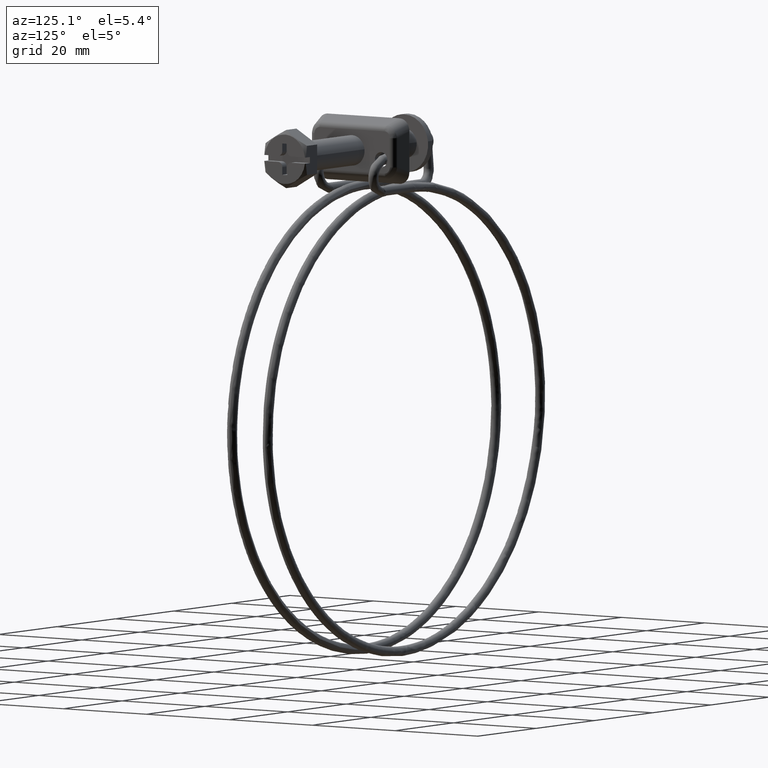
[diagram: clean part render]
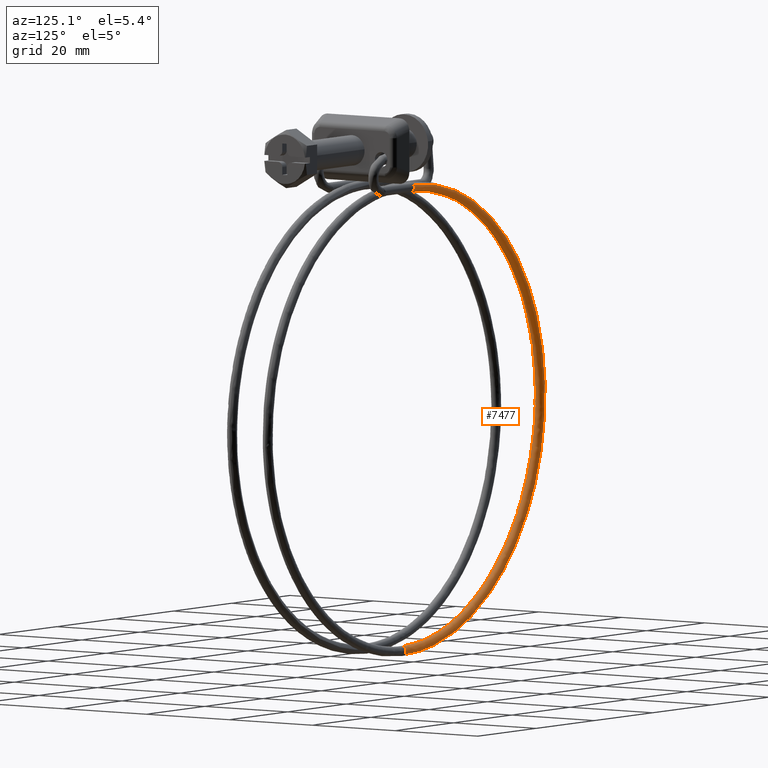
[diagram: same view with one face highlighted and labeled with its STEP entity id]
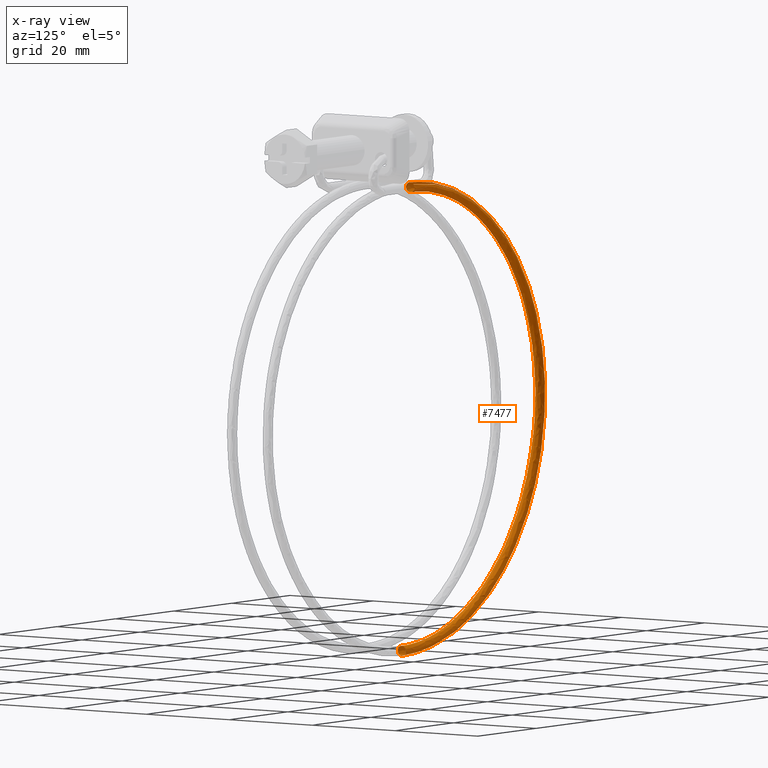
[diagram: x-ray of the same camera — body ghosted, the highlighted face saturated]
A machine part, auxiliary view. The second image highlights one B-rep face of the part: STEP entity #7477.
The next image is the same camera in x-ray: the body ghosted, the highlighted face saturated — about 0% of this face is hidden behind the body in this view.
In plain terms, the highlighted face is a freeform B-spline surface patch.
Its self-contained STEP definition (entity closure, byte-faithful):
#5703=CARTESIAN_POINT('',(-30.049999999999230,5.999755693400784,-6.899852987345003));
#5704=VERTEX_POINT('',#5703);
#5705=CARTESIAN_POINT('',(-30.049999999999240,6.353676709967662,-6.850955199523075));
#5706=VERTEX_POINT('',#5705);
#5707=CARTESIAN_POINT('',(-30.049999999999230,5.999755693400784,-6.899852987345003));
#5708=CARTESIAN_POINT('',(-30.049999999999230,6.113607190196933,-6.862736609330305));
#5709=CARTESIAN_POINT('',(-30.049999999999240,6.233966795544704,-6.845572658446798));
#5710=CARTESIAN_POINT('',(-30.049999999999240,6.353676709967662,-6.850955199523075));
#5711=B_SPLINE_CURVE_WITH_KNOTS('',3,(#5707,#5708,#5709,#5710),.UNSPECIFIED.,.F.,.U.,(4,4),(0.942811831421884,1.0),.UNSPECIFIED.);
#5712=EDGE_CURVE('',#5704,#5706,#5711,.T.);
#5765=CARTESIAN_POINT('',(-30.049999999434281,5.310192172132622,-7.867397762946858));
#5766=VERTEX_POINT('',#5765);
#5772=CARTESIAN_POINT('',(-30.049999999999230,6.266327100939376,-8.849046800476961));
#5773=VERTEX_POINT('',#5772);
#5774=CARTESIAN_POINT('',(-30.049999999999230,6.266327100939376,-8.849046800476961));
#5775=CARTESIAN_POINT('',(-30.049999999920619,6.004772106699168,-8.837612870360513));
#5776=CARTESIAN_POINT('',(-30.049999999812041,5.749532596010638,-8.718579130547013));
#5777=CARTESIAN_POINT('',(-30.049999999604669,5.409562023273995,-8.347540907804744));
#5778=CARTESIAN_POINT('',(-30.049999999506898,5.314962099823448,-8.108624565536566));
#5779=CARTESIAN_POINT('',(-30.049999999434281,5.310192172132622,-7.867397762946858));
#5780=B_SPLINE_CURVE_WITH_KNOTS('',3,(#5774,#5775,#5776,#5777,#5778,#5779),.UNSPECIFIED.,.F.,.U.,(4,2,4),(0.500000000000000,0.625000000000000,0.740274349353484),.UNSPECIFIED.);
#5781=EDGE_CURVE('',#5773,#5766,#5780,.T.);
#5783=CARTESIAN_POINT('',(-30.049999999999240,7.068152112521496,-7.197955006450780));
#5784=VERTEX_POINT('',#5783);
#5785=CARTESIAN_POINT('',(-30.049999999999240,7.068152112521496,-7.197955006450780));
#5786=CARTESIAN_POINT('',(-30.049999999999230,7.231707537160080,-7.388647784320983));
#5787=CARTESIAN_POINT('',(-30.049999999999230,7.320024364138497,-7.642588606575142));
#5788=CARTESIAN_POINT('',(-30.049999999999230,7.297613668846430,-8.155225383462323));
#5789=CARTESIAN_POINT('',(-30.049999999999230,7.178579781296986,-8.410457414939877));
#5790=CARTESIAN_POINT('',(-30.049999999999230,6.792522649198557,-8.764174206404425));
#5791=CARTESIAN_POINT('',(-30.049999999999230,6.527876679887554,-8.860480837561010));
#5792=CARTESIAN_POINT('',(-30.049999999999230,6.266327100939376,-8.849046800476961));
#5793=B_SPLINE_CURVE_WITH_KNOTS('',3,(#5785,#5786,#5787,#5788,#5789,#5790,#5791,#5792),.UNSPECIFIED.,.F.,.U.,(4,2,2,4),(0.130000190141412,0.250000000000000,0.375000000000000,0.500000000000000),.UNSPECIFIED.);
#5794=EDGE_CURVE('',#5784,#5773,#5793,.T.);
#5822=CARTESIAN_POINT('',(-30.049999999434281,5.310192172132622,-7.867397762946858));
#5823=CARTESIAN_POINT('',(-30.049999999442051,5.309788624514021,-7.847039220494791));
#5824=CARTESIAN_POINT('',(-30.049999999450002,5.310024458974900,-7.826664082965641));
#5825=CARTESIAN_POINT('',(-30.049999999562569,5.322325918647586,-7.544672948503854));
#5826=CARTESIAN_POINT('',(-30.049999999694268,5.441333825127187,-7.289333696925996));
#5827=CARTESIAN_POINT('',(-30.049999999882139,5.739042297073577,-7.016377631393280));
#5828=CARTESIAN_POINT('',(-30.049999999944848,5.864823924642217,-6.944088265251131));
#5829=CARTESIAN_POINT('',(-30.049999999999230,5.999755693400784,-6.899852987345003));
#5830=B_SPLINE_CURVE_WITH_KNOTS('',3,(#5822,#5823,#5824,#5825,#5826,#5827,#5828,#5829),.UNSPECIFIED.,.F.,.U.,(4,2,2,4),(0.740274349353484,0.750000000000000,0.875000000000000,0.942811831421884),.UNSPECIFIED.);
#5831=EDGE_CURVE('',#5766,#5704,#5830,.T.);
#6621=CARTESIAN_POINT('',(-30.049999996519482,4.312567047723819,-100.849843094641700));
#6622=VERTEX_POINT('',#6621);
#6638=CARTESIAN_POINT('',(-30.050000000001148,5.028950799201400,-100.534536873659600));
#6639=VERTEX_POINT('',#6638);
#6649=CARTESIAN_POINT('',(-30.050000000001148,4.300002000002150,-98.850001000000105));
#6650=VERTEX_POINT('',#6649);
#6651=CARTESIAN_POINT('',(-30.050000000001148,5.028950799201400,-100.534536873659600));
#6652=CARTESIAN_POINT('',(-30.050000000001148,5.200678629127710,-100.351169305945400));
#6653=CARTESIAN_POINT('',(-30.050000000001148,5.300002000002150,-100.101328014056090));
#6654=CARTESIAN_POINT('',(-30.050000000001148,5.300002000002150,-99.588201612201004));
#6655=CARTESIAN_POINT('',(-30.050000000001148,5.192228903611960,-99.328014341236809));
#6656=CARTESIAN_POINT('',(-30.050000000001148,4.821988658765431,-98.957774096390295));
#6657=CARTESIAN_POINT('',(-30.050000000001148,4.561801387801300,-98.850001000000105));
#6658=CARTESIAN_POINT('',(-30.050000000001148,4.300002000002150,-98.850001000000105));
#6659=B_SPLINE_CURVE_WITH_KNOTS('',3,(#6651,#6652,#6653,#6654,#6655,#6656,#6657,#6658),.UNSPECIFIED.,.F.,.U.,(4,2,2,4),(0.130000190141358,0.250000000000000,0.375000000000000,0.500000000000000),.UNSPECIFIED.);
#6660=EDGE_CURVE('',#6639,#6650,#6659,.T.);
#6662=CARTESIAN_POINT('',(-30.049999999998299,3.300325003172356,-99.875130904040404));
#6663=VERTEX_POINT('',#6662);
#6664=CARTESIAN_POINT('',(-30.050000000001148,4.300002000002150,-98.850001000000105));
#6665=CARTESIAN_POINT('',(-30.050000000000789,4.038201694074086,-98.850001024100820));
#6666=CARTESIAN_POINT('',(-30.050000000000271,3.778013123049111,-98.957774154617354));
#6667=CARTESIAN_POINT('',(-30.049999999999230,3.407770248273019,-99.328014468499020));
#6668=CARTESIAN_POINT('',(-30.049999999998711,3.299995838208778,-99.588201773946906));
#6669=CARTESIAN_POINT('',(-30.049999999998331,3.299994866563078,-99.858380213115041));
#6670=CARTESIAN_POINT('',(-30.049999999998310,3.300105234559130,-99.866757588381915));
#6671=CARTESIAN_POINT('',(-30.049999999998299,3.300325003172356,-99.875130904040404));
#6672=B_SPLINE_CURVE_WITH_KNOTS('',3,(#6664,#6665,#6666,#6667,#6668,#6669,#6670,#6671),.UNSPECIFIED.,.F.,.U.,(4,2,2,4),(0.500000000000000,0.625000000000000,0.750000000000000,0.754000690153427),.UNSPECIFIED.);
#6673=EDGE_CURVE('',#6650,#6663,#6672,.T.);
#6728=CARTESIAN_POINT('',(-30.049999999998299,3.300325003172356,-99.875130904040404));
#6729=CARTESIAN_POINT('',(-30.049999999545939,3.308607526911010,-100.128357982122590));
#6730=CARTESIAN_POINT('',(-30.049999998921528,3.417584146352613,-100.377863780059300));
#6731=CARTESIAN_POINT('',(-30.049999997638000,3.786538112267745,-100.742120829315100));
#6732=CARTESIAN_POINT('',(-30.049999996986440,4.049080067938715,-100.849864315874600));
#6733=CARTESIAN_POINT('',(-30.049999996519482,4.312567047723819,-100.849843094641700));
#6734=B_SPLINE_CURVE_WITH_KNOTS('',3,(#6728,#6729,#6730,#6731,#6732,#6733),.UNSPECIFIED.,.F.,.U.,(4,2,4),(0.754000690153426,0.875000000000000,1.0),.UNSPECIFIED.);
#6735=EDGE_CURVE('',#6663,#6622,#6734,.T.);
#7248=CARTESIAN_POINT('',(-29.316465547794241,7.050297714195269,-7.177164971188298));
#7249=CARTESIAN_POINT('',(-29.319433184892919,7.225136738406863,-7.369872634556280));
#7250=CARTESIAN_POINT('',(-29.327690344527468,7.416194945224826,-7.899608678631754));
#7251=CARTESIAN_POINT('',(-29.339876115313292,7.058921109977724,-8.667417926365463));
#7252=CARTESIAN_POINT('',(-29.344697993747069,6.261581406615353,-8.956906627181873));
#7253=CARTESIAN_POINT('',(-29.339338370993492,5.492526033159320,-8.598968588750582));
#7254=CARTESIAN_POINT('',(-29.326909993414191,5.202993350991814,-7.801586289594034));
#7255=CARTESIAN_POINT('',(-29.314500146671961,5.567446551498171,-7.019671632534410));
#7256=CARTESIAN_POINT('',(-29.311328078591568,6.119524780218951,-6.829833656576368));
#7257=CARTESIAN_POINT('',(-29.311593209653459,6.393571841876428,-6.852696376538033));
#7258=CARTESIAN_POINT('',(-29.560973584191601,7.050285778119648,-7.178099587167547));
#7259=CARTESIAN_POINT('',(-29.562952023061399,7.225124867967862,-7.370803466641084));
#7260=CARTESIAN_POINT('',(-29.568456835486820,7.416183257093367,-7.900528982447290));
#7261=CARTESIAN_POINT('',(-29.576580740728421,7.058909689602110,-8.668322692941924));
#7262=CARTESIAN_POINT('',(-29.579795349321671,6.261570091797188,-8.957805245767105));
#7263=CARTESIAN_POINT('',(-29.576222241953460,5.492514600996826,-8.599874040962639));
#7264=CARTESIAN_POINT('',(-29.567936597693858,5.202981645677680,-7.802507588388012));
#7265=CARTESIAN_POINT('',(-29.559663307413981,5.567434572066240,-7.020608754486463));
#7266=CARTESIAN_POINT('',(-29.557548580249112,6.119512730431663,-6.830774823114196));
#7267=CARTESIAN_POINT('',(-29.557725335553410,6.393559797976902,-6.853637205016548));
#7268=CARTESIAN_POINT('',(-35.918455170925000,7.051613843410568,-7.128633369407684));
#7269=CARTESIAN_POINT('',(-35.894713337875750,7.226448065815561,-7.321537306134513));
#7270=CARTESIAN_POINT('',(-35.828654012232079,7.417492902429011,-7.851819463014222));
#7271=CARTESIAN_POINT('',(-35.731164822701899,7.060199296756248,-8.620434660275452));
#7272=CARTESIAN_POINT('',(-35.692588598936972,6.262851758439648,-8.910242274936181));
#7273=CARTESIAN_POINT('',(-35.735466910674120,5.493805093254927,-8.551949756858670));
#7274=CARTESIAN_POINT('',(-35.834897014740243,5.204292573162218,-7.753745462850865));
#7275=CARTESIAN_POINT('',(-35.934178867507192,5.568765864263672,-6.971010042669628));
#7276=CARTESIAN_POINT('',(-35.959556199131690,6.120849219624720,-6.780962273650480));
#7277=CARTESIAN_POINT('',(-35.957435084858822,6.394895853000552,-6.803842528735677));
#7278=CARTESIAN_POINT('',(-42.271085327250837,7.023773156094059,-8.392439085665039));
#7279=CARTESIAN_POINT('',(-42.221643115818352,7.198719548935027,-8.580229931601240));
#7280=CARTESIAN_POINT('',(-42.084075003821518,7.390076497458533,-9.096285412776354));
#7281=CARTESIAN_POINT('',(-41.881054406720793,7.033243535910962,-9.843905127646369));
#7282=CARTESIAN_POINT('',(-41.800719674147317,6.236078283927376,-10.125404881595530));
#7283=CARTESIAN_POINT('',(-41.890013476636327,5.466829003934442,-9.776346731333559));
#7284=CARTESIAN_POINT('',(-42.097076015559622,5.176846670484034,-8.999555919040708));
#7285=CARTESIAN_POINT('',(-42.303829822271062,5.540850885864520,-8.238202047551420));
#7286=CARTESIAN_POINT('',(-42.356677948665933,6.092814349047698,-8.053619592814737));
#7287=CARTESIAN_POINT('',(-42.352260742111199,6.366871003181313,-8.076043040366248));
#7288=CARTESIAN_POINT('',(-53.563541326354780,6.921581958077990,-13.069847180810450));
#7289=CARTESIAN_POINT('',(-53.468418392246782,7.096941738531668,-13.238716802528300));
#7290=CARTESIAN_POINT('',(-53.203748142409673,7.289448897599909,-13.702125830005141));
#7291=CARTESIAN_POINT('',(-52.813152448518842,6.934313396557336,-14.372050835032249));
#7292=CARTESIAN_POINT('',(-52.658594728315379,6.137819825363231,-14.622806991076500));
#7293=CARTESIAN_POINT('',(-52.830388995864659,5.367823957546239,-14.307921018605960));
#7294=CARTESIAN_POINT('',(-53.228761068578883,5.076110368836051,-13.610371741791720));
#7295=CARTESIAN_POINT('',(-53.626539164561351,5.438385910259768,-12.928141255613911));
#7296=CARTESIAN_POINT('',(-53.728214811840402,5.989907508912931,-12.763783447490230));
#7297=CARTESIAN_POINT('',(-53.719716453146660,6.264001095418554,-12.784516457832099));
#7298=CARTESIAN_POINT('',(-63.923693759561310,6.770322791363254,-19.993152398687169));
#7299=CARTESIAN_POINT('',(-63.786666670885950,6.946294411456360,-20.134017419699219));
#7300=CARTESIAN_POINT('',(-63.405402214232232,7.140503954411740,-20.519506388002331));
#7301=CARTESIAN_POINT('',(-62.842738843158479,6.787880801516976,-21.074438342179018));
#7302=CARTESIAN_POINT('',(-62.620094381851743,5.992381360073133,-21.279692040756832));
#7303=CARTESIAN_POINT('',(-62.867568542995471,5.221280495425347,-21.015383039384840));
#7304=CARTESIAN_POINT('',(-63.441433992277958,4.927004540157085,-20.435116212852481));
#7305=CARTESIAN_POINT('',(-64.014443802642162,5.286721535550307,-19.869993307822192));
#7306=CARTESIAN_POINT('',(-64.160910246892897,5.837589146877902,-19.735569247258429));
#7307=CARTESIAN_POINT('',(-64.148668137655093,6.111737395628921,-19.753800304239711));
#7308=CARTESIAN_POINT('',(-70.846631423405967,6.543976411646201,-30.353285314525980));
#7309=CARTESIAN_POINT('',(-70.681611513592117,6.720863313416813,-30.452256845361742));
#7310=CARTESIAN_POINT('',(-70.222459773296691,6.917619538024190,-30.721181279381192));
#7311=CARTESIAN_POINT('',(-69.544851720367674,6.568754733046987,-31.104089346467710));
#7312=CARTESIAN_POINT('',(-69.276723941648385,5.774742460303716,-31.241273631624111));
#7313=CARTESIAN_POINT('',(-69.574753799386798,5.001988575300036,-31.052625263729499));
#7314=CARTESIAN_POINT('',(-70.265852366776642,4.703879447073569,-30.647807151867539));
#7315=CARTESIAN_POINT('',(-70.955920499454393,5.059768984796546,-30.257871365689049));
#7316=CARTESIAN_POINT('',(-71.132308100344503,5.609658263643065,-30.168226703182629));
#7317=CARTESIAN_POINT('',(-71.117565090130697,5.883888284387663,-30.182714962388580));
#7318=CARTESIAN_POINT('',(-75.523710593638697,6.297277969378966,-41.644955431590311));
#7319=CARTESIAN_POINT('',(-75.339780187158595,6.475162328373380,-41.698272203425887));
#7320=CARTESIAN_POINT('',(-74.828011841466974,6.674693880022105,-41.840166741110913));
#7321=CARTESIAN_POINT('',(-74.072753129137226,6.329924853857803,-42.035606323971507));
#7322=CARTESIAN_POINT('',(-73.773899182296617,5.537533270325832,-42.098609808051542));
#7323=CARTESIAN_POINT('',(-74.106081844114115,4.762977954005295,-41.992415013989643));
#7324=CARTESIAN_POINT('',(-74.876377019828126,4.460691504026959,-41.778797700723032));
#7325=CARTESIAN_POINT('',(-75.645523677948120,4.812409948433462,-41.579777630837597));
#7326=CARTESIAN_POINT('',(-75.842124458790934,5.361233058432112,-41.538932736923257));
#7327=CARTESIAN_POINT('',(-75.825691969790299,5.635552192798273,-41.549342163588747));
#7328=CARTESIAN_POINT('',(-77.953973527878532,6.030278065103800,-53.865846705364667));
#7329=CARTESIAN_POINT('',(-77.760218488122845,6.209241855306281,-53.869756675088951));
#7330=CARTESIAN_POINT('',(-77.221114062412767,6.411776818605699,-53.874181623651523));
#7331=CARTESIAN_POINT('',(-76.425513244312597,6.071440174433664,-53.866746007967102));
#7332=CARTESIAN_POINT('',(-76.110696029275573,5.280802473174252,-53.849472293138042));
#7333=CARTESIAN_POINT('',(-76.460622210931263,4.504297678571887,-53.832507351635101));
#7334=CARTESIAN_POINT('',(-77.272062664261853,4.197490602189040,-53.825804284018353));
#7335=CARTESIAN_POINT('',(-78.082293251852590,4.544695160482830,-53.833389948787087));
#7336=CARTESIAN_POINT('',(-78.289395453467506,5.092364480728586,-53.845355332687241));
#7337=CARTESIAN_POINT('',(-78.272085223859420,5.366780052339673,-53.851350716320468));
#7338=CARTESIAN_POINT('',(-75.523710593639450,5.763278160820883,-66.086737979284209));
#7339=CARTESIAN_POINT('',(-75.339780187155569,5.943321382232809,-66.041241146886833));
#7340=CARTESIAN_POINT('',(-74.828011841418515,6.148859757168713,-65.908196506502833));
#7341=CARTESIAN_POINT('',(-74.072753129113096,5.812955495012606,-65.697885692083460));
#7342=CARTESIAN_POINT('',(-73.773899182254837,5.024071676012129,-65.600334778432426));
#7343=CARTESIAN_POINT('',(-74.106081844121476,4.245617403130647,-65.672599689405487));
#7344=CARTESIAN_POINT('',(-74.876377019756887,3.934289700338984,-65.872810867608564));
#7345=CARTESIAN_POINT('',(-75.645523678015721,4.276980372525274,-66.087002266851655));
#7346=CARTESIAN_POINT('',(-75.842124458747932,4.823495903018510,-66.151777928692994));
#7347=CARTESIAN_POINT('',(-75.825691969757486,5.098007911872838,-66.153359269236788));
#7348=CARTESIAN_POINT('',(-70.846631423423403,5.516579718562928,-77.378408096159220));
#7349=CARTESIAN_POINT('',(-70.681611513625867,5.697620397197522,-77.287256504774021));
#7350=CARTESIAN_POINT('',(-70.222459773377153,5.905934099187823,-77.027181967992334));
#7351=CARTESIAN_POINT('',(-69.544851720437464,5.574125615825002,-76.629402669409160));
#7352=CARTESIAN_POINT('',(-69.276723941711666,4.786862486045180,-76.457670954636782));
#7353=CARTESIAN_POINT('',(-69.574753799418161,4.006606781844617,-76.612389439501214));
#7354=CARTESIAN_POINT('',(-70.265852366889149,3.691101757304134,-77.003801416210706));
#7355=CARTESIAN_POINT('',(-70.955920499434328,4.029621336170332,-77.408908531831457));
#7356=CARTESIAN_POINT('',(-71.132308100408636,4.575070697814848,-77.522483962163619));
#7357=CARTESIAN_POINT('',(-71.117565090204621,4.849671820292759,-77.519986470221752));
#7358=CARTESIAN_POINT('',(-63.923693759567982,5.290233338832394,-87.738541012193707));
#7359=CARTESIAN_POINT('',(-63.786666670890327,5.472189299144405,-87.605495930598806));
#7360=CARTESIAN_POINT('',(-63.405402214208173,5.683049682780518,-87.228856859502571));
#7361=CARTESIAN_POINT('',(-62.842738843151302,5.354999547344599,-86.659053673933542));
#7362=CARTESIAN_POINT('',(-62.620094381800953,4.569223586260829,-86.419252545615393));
#7363=CARTESIAN_POINT('',(-62.867568543000807,3.787314861709692,-86.649631664067314));
#7364=CARTESIAN_POINT('',(-63.441433992253643,3.467976664209083,-87.216492355438788));
#7365=CARTESIAN_POINT('',(-64.014443802649183,3.802668785409604,-87.796786589871104));
#7366=CARTESIAN_POINT('',(-64.160910246877222,4.347139814564045,-87.955141418348049));
#7367=CARTESIAN_POINT('',(-64.148668137640627,4.621822709035802,-87.948901128568792));
#7368=CARTESIAN_POINT('',(-53.563541326329691,5.138974172136441,-94.661846229951877));
#7369=CARTESIAN_POINT('',(-53.468418392209912,5.321541972089928,-94.500796547722913));
#7370=CARTESIAN_POINT('',(-53.203748142382622,5.534104739607964,-94.046237417446676));
#7371=CARTESIAN_POINT('',(-52.813152448468948,5.208566952322945,-93.361441180845716));
#7372=CARTESIAN_POINT('',(-52.658594728359162,4.423785120992867,-93.076137595439988));
#7373=CARTESIAN_POINT('',(-52.830388995828429,3.640771399598400,-93.357093684590964));
#7374=CARTESIAN_POINT('',(-53.228761068520043,3.318870835541932,-94.041236826285711));
#7375=CARTESIAN_POINT('',(-53.626539164573359,3.651004410702266,-94.738638642007217));
#7376=CARTESIAN_POINT('',(-53.728214811812961,4.194821452560793,-94.926927217933638));
#7377=CARTESIAN_POINT('',(-53.719716453107267,4.469559009272433,-94.918184974875118));
#7378=CARTESIAN_POINT('',(-42.271085327262732,5.036782974639313,-99.339254325304680));
#7379=CARTESIAN_POINT('',(-42.221643115830439,5.219764162201152,-99.159283418764076));
#7380=CARTESIAN_POINT('',(-42.084075003833483,5.433477140272967,-98.652077834700293));
#7381=CARTESIAN_POINT('',(-41.881054406738379,5.109636813475021,-97.889586888602224));
#7382=CARTESIAN_POINT('',(-41.800719674089827,4.325526662934010,-97.573539704742927));
#7383=CARTESIAN_POINT('',(-41.890013476679172,3.541766353733158,-97.888667972254225));
#7384=CARTESIAN_POINT('',(-42.097076015572739,3.218134534420456,-98.652052649290738));
#7385=CARTESIAN_POINT('',(-42.303829822251437,3.548539435639225,-99.428577850228905));
#7386=CARTESIAN_POINT('',(-42.356677948677337,4.091914612929383,-99.637091072865346));
#7387=CARTESIAN_POINT('',(-42.352260742122802,4.366689102020747,-99.626658392508489));
#7388=CARTESIAN_POINT('',(-35.918455205606357,5.009171568412445,-100.603094858405000));
#7389=CARTESIAN_POINT('',(-35.894713372377623,5.192264467409123,-100.418010653375800));
#7390=CARTESIAN_POINT('',(-35.828654046231847,5.406288271658357,-99.896577812265804));
#7391=CARTESIAN_POINT('',(-35.731164855950723,5.082906656766467,-99.113090520313122));
#7392=CARTESIAN_POINT('',(-35.692588631943508,4.298978017476318,-98.788735125361740));
#7393=CARTESIAN_POINT('',(-35.735466943911263,3.515015954868219,-99.113098123454662));
#7394=CARTESIAN_POINT('',(-35.834897048753433,3.190916291252593,-99.897897152426296));
#7395=CARTESIAN_POINT('',(-35.934178902312333,3.520854045613289,-100.695804786970500));
#7396=CARTESIAN_POINT('',(-35.959556234114807,4.064109815903125,-100.909783558658110));
#7397=CARTESIAN_POINT('',(-35.957435119829562,4.338894285336795,-100.898894056356990));
#7398=CARTESIAN_POINT('',(-29.560973579033291,5.010252296682213,-100.553591093817400));
#7399=CARTESIAN_POINT('',(-29.562952017927039,5.193340823227871,-100.368707170075600));
#7400=CARTESIAN_POINT('',(-29.568456830419311,5.407352461501705,-99.847831597070595));
#7401=CARTESIAN_POINT('',(-29.576580735760320,5.083952892157444,-99.065166722792739));
#7402=CARTESIAN_POINT('',(-29.579795344388799,4.300017148206996,-98.741136767848573));
#7403=CARTESIAN_POINT('',(-29.576222236984432,3.516062982265036,-99.065138061138924));
#7404=CARTESIAN_POINT('',(-29.567936592622679,3.191981630432195,-99.849098310344331));
#7405=CARTESIAN_POINT('',(-29.559663302239500,3.521937669400566,-100.646168404311990));
#7406=CARTESIAN_POINT('',(-29.557548575050038,4.065198113487982,-100.859933085137800));
#7407=CARTESIAN_POINT('',(-29.557725330356192,4.339982192332556,-100.849061471606600));
#7408=CARTESIAN_POINT('',(-29.316465540135290,5.010231877318985,-100.554524422037800));
#7409=CARTESIAN_POINT('',(-29.319433177269492,5.193320486478438,-100.369636722085400));
#7410=CARTESIAN_POINT('',(-29.327690337003158,5.407332354615046,-99.848750642317100));
#7411=CARTESIAN_POINT('',(-29.339876107936409,5.083933124494091,-99.066070262727507));
#7412=CARTESIAN_POINT('',(-29.344697986422531,4.299997514769005,-98.742034172763070));
#7413=CARTESIAN_POINT('',(-29.339338363615159,3.516043199621717,-99.066042286251147));
#7414=CARTESIAN_POINT('',(-29.326909985884441,3.191961501807659,-99.850018349856200));
#7415=CARTESIAN_POINT('',(-29.314500138989072,3.521917195315067,-100.647104234251800));
#7416=CARTESIAN_POINT('',(-29.311328070872172,4.065177551102595,-100.860872950978700));
#7417=CARTESIAN_POINT('',(-29.311593201936830,4.339961637329634,-100.850000999922900));
#7418=B_SPLINE_SURFACE_WITH_KNOTS('',3,3,((#7248,#7258,#7268,#7278,#7288,#7298,#7308,#7318,#7328,#7338,#7348,#7358,#7368,#7378,#7388,#7398,#7408),(#7249,#7259,#7269,#7279,#7289,#7299,#7309,#7319,#7329,#7339,#7349,#7359,#7369,#7379,#7389,#7399,#7409),(#7250,#7260,#7270,#7280,#7290,#7300,#7310,#7320,#7330,#7340,#7350,#7360,#7370,#7380,#7390,#7400,#7410),(#7251,#7261,#7271,#7281,#7291,#7301,#7311,#7321,#7331,#7341,#7351,#7361,#7371,#7381,#7391,#7401,#7411),(#7252,#7262,#7272,#7282,#7292,#7302,#7312,#7322,#7332,#7342,#7352,#7362,#7372,#7382,#7392,#7402,#7412),(#7253,#7263,#7273,#7283,#7293,#7303,#7313,#7323,#7333,#7343,#7353,#7363,#7373,#7383,#7393,#7403,#7413),(#7254,#7264,#7274,#7284,#7294,#7304,#7314,#7324,#7334,#7344,#7354,#7364,#7374,#7384,#7394,#7404,#7414),(#7255,#7265,#7275,#7285,#7295,#7305,#7315,#7325,#7335,#7345,#7355,#7365,#7375,#7385,#7395,#7405,#7415),(#7256,#7266,#7276,#7286,#7296,#7306,#7316,#7326,#7336,#7346,#7356,#7366,#7376,#7386,#7396,#7406,#7416),(#7257,#7267,#7277,#7287,#7297,#7307,#7317,#7327,#7337,#7347,#7357,#7367,#7377,#7387,#7397,#7407,#7417)),.UNSPECIFIED.,.F.,.F.,.U.,(4,1,1,1,1,1,1,4),(4,1,2,1,2,1,2,1,2,1,4),(0.0,0.781846611243143,1.567717423491645,2.353588235740148,3.139459047988650,3.925329860237153,4.711200672485655,5.537055258083675),(0.0,0.738419907600977,19.198918009805499,37.659416112010007,56.119914214214482,74.580412316418915,93.040910418623540,111.501408520828090,129.961906623032600,148.422404725237100,149.160824636385200),.UNSPECIFIED.);
#7419=ORIENTED_EDGE('',*,*,#6660,.F.);
#7420=CARTESIAN_POINT('',(-30.049999999999240,7.068152112521496,-7.197955006450780));
#7421=CARTESIAN_POINT('',(-36.160116921835588,7.068371882910762,-7.197988453337161));
#7422=CARTESIAN_POINT('',(-42.265746676671263,7.041612742717636,-8.412695671230223));
#7423=CARTESIAN_POINT('',(-53.553609727583158,6.939458790373820,-13.088399014150310));
#7424=CARTESIAN_POINT('',(-58.730404985897103,6.863884518831451,-16.547519937898610));
#7425=CARTESIAN_POINT('',(-67.369534526239903,6.675134492660512,-25.186824712259341));
#7426=CARTESIAN_POINT('',(-70.828473455190348,6.562032997784112,-30.363609608668309));
#7427=CARTESIAN_POINT('',(-75.503850253080870,6.315424343548799,-41.651170024668332));
#7428=CARTESIAN_POINT('',(-76.718451300662508,6.182014151884658,-47.757507222206172));
#7429=CARTESIAN_POINT('',(-76.718451300662508,5.915088832538879,-59.974984657902311));
#7430=CARTESIAN_POINT('',(-75.503850253081481,5.781678640870944,-66.081321855512314));
#7431=CARTESIAN_POINT('',(-70.828473455191357,5.535069986643213,-77.368882271367852));
#7432=CARTESIAN_POINT('',(-67.369534526289257,5.421968491764744,-82.545667167741939));
#7433=CARTESIAN_POINT('',(-58.730404985850562,5.233218465590345,-91.184971942318015));
#7434=CARTESIAN_POINT('',(-53.553609727574852,5.157644194062054,-94.644092865877795));
#7435=CARTESIAN_POINT('',(-42.265746676683101,5.055490241693510,-99.319796208960767));
#7436=CARTESIAN_POINT('',(-36.160116956295120,5.028951531033727,-100.534536885006900));
#7437=CARTESIAN_POINT('',(-30.050000000001148,5.028950799201400,-100.534536873659600));
#7438=B_SPLINE_CURVE_WITH_KNOTS('',3,(#7420,#7421,#7422,#7423,#7424,#7425,#7426,#7427,#7428,#7429,#7430,#7431,#7432,#7433,#7434,#7435,#7436,#7437),.UNSPECIFIED.,.F.,.U.,(4,2,2,2,2,2,2,2,4),(0.037631751728579,0.064538594476331,0.091445437224084,0.118352279971836,0.145259122719588,0.172165965467341,0.199072808215093,0.225979650962846,0.252886493710599),.UNSPECIFIED.);
#7439=EDGE_CURVE('',#5784,#6639,#7438,.T.);
#7440=ORIENTED_EDGE('',*,*,#7439,.F.);
#7441=ORIENTED_EDGE('',*,*,#5794,.T.);
#7442=ORIENTED_EDGE('',*,*,#5781,.T.);
#7443=ORIENTED_EDGE('',*,*,#5831,.T.);
#7444=ORIENTED_EDGE('',*,*,#5712,.T.);
#7445=CARTESIAN_POINT('',(-30.049999999999240,6.353676709967662,-6.850955199523075));
#7446=CARTESIAN_POINT('',(-36.202801276756468,6.353855767857408,-6.851964725273659));
#7447=CARTESIAN_POINT('',(-42.352942228809717,6.327138886733544,-8.073687392428404));
#7448=CARTESIAN_POINT('',(-48.036801800559239,6.276019646372554,-10.428023610977490));
#7449=CARTESIAN_POINT('',(-53.721187306125863,6.224895675891675,-12.782577678862671));
#7450=CARTESIAN_POINT('',(-58.934574776243217,6.149239658608952,-16.266464249497741));
#7451=CARTESIAN_POINT('',(-63.284734426197559,6.054777983863750,-20.616733131959180));
#7452=CARTESIAN_POINT('',(-67.635227731822468,5.960309063942287,-24.967335678469279));
#7453=CARTESIAN_POINT('',(-71.118737071128919,5.847107369332308,-30.180748006341251));
#7454=CARTESIAN_POINT('',(-73.472991635519620,5.723688624451530,-35.864543154082703));
#7455=CARTESIAN_POINT('',(-75.827385772590731,5.600262562653840,-41.548675267306002));
#7456=CARTESIAN_POINT('',(-77.050348629244027,5.466726498079639,-47.698264299555419));
#7457=CARTESIAN_POINT('',(-77.050356061689172,5.333137276212516,-53.850399479916462));
#7458=CARTESIAN_POINT('',(-77.050363737835340,5.195167822934789,-60.204255842440674));
#7459=CARTESIAN_POINT('',(-75.745720306392059,5.057262931040140,-66.555405377104478));
#7460=CARTESIAN_POINT('',(-73.237824865270497,4.930490181994941,-72.393815752060291));
#7461=CARTESIAN_POINT('',(-70.690369180737008,4.801717684185102,-78.324322843563706));
#7462=CARTESIAN_POINT('',(-66.908519107806299,4.684466493409830,-83.722225970584375));
#7463=CARTESIAN_POINT('',(-62.197859417219803,4.588654300200918,-88.136272478650127));
#7464=CARTESIAN_POINT('',(-57.929511062677982,4.501838473100195,-92.135858393808377));
#7465=CARTESIAN_POINT('',(-52.909879364653648,4.432370804449024,-95.332554827242959));
#7466=CARTESIAN_POINT('',(-47.476261595149957,4.385317453310222,-97.500801816884731));
#7467=CARTESIAN_POINT('',(-41.949734700165472,4.337459539559418,-99.706123540190077));
#7468=CARTESIAN_POINT('',(-36.000800834641062,4.312528522338790,-100.848899198973700));
#7469=CARTESIAN_POINT('',(-30.049999996519482,4.312567047723819,-100.849843094641700));
#7470=B_SPLINE_CURVE_WITH_KNOTS('',3,(#7445,#7446,#7447,#7448,#7449,#7450,#7451,#7452,#7453,#7454,#7455,#7456,#7457,#7458,#7459,#7460,#7461,#7462,#7463,#7464,#7465,#7466,#7467,#7468,#7469),.UNSPECIFIED.,.F.,.U.,(4,3,3,3,3,3,3,3,4),(0.0,18.458404086546160,36.918516149652312,55.380044096671902,73.842666540853784,92.910656376370213,112.279430011283000,129.829556427606490,147.679771471173890),.UNSPECIFIED.);
#7471=EDGE_CURVE('',#5706,#6622,#7470,.T.);
#7472=ORIENTED_EDGE('',*,*,#7471,.T.);
#7473=ORIENTED_EDGE('',*,*,#6735,.F.);
#7474=ORIENTED_EDGE('',*,*,#6673,.F.);
#7475=EDGE_LOOP('',(#7419,#7440,#7441,#7442,#7443,#7444,#7472,#7473,#7474));
#7476=FACE_OUTER_BOUND('',#7475,.T.);
#7477=ADVANCED_FACE('',(#7476),#7418,.T.);